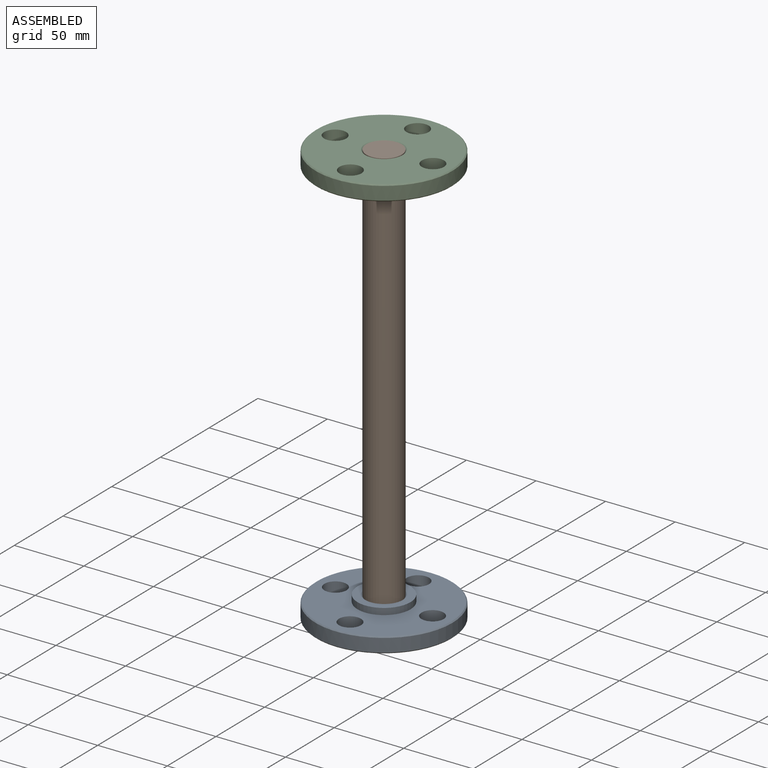
[diagram: assembled view]
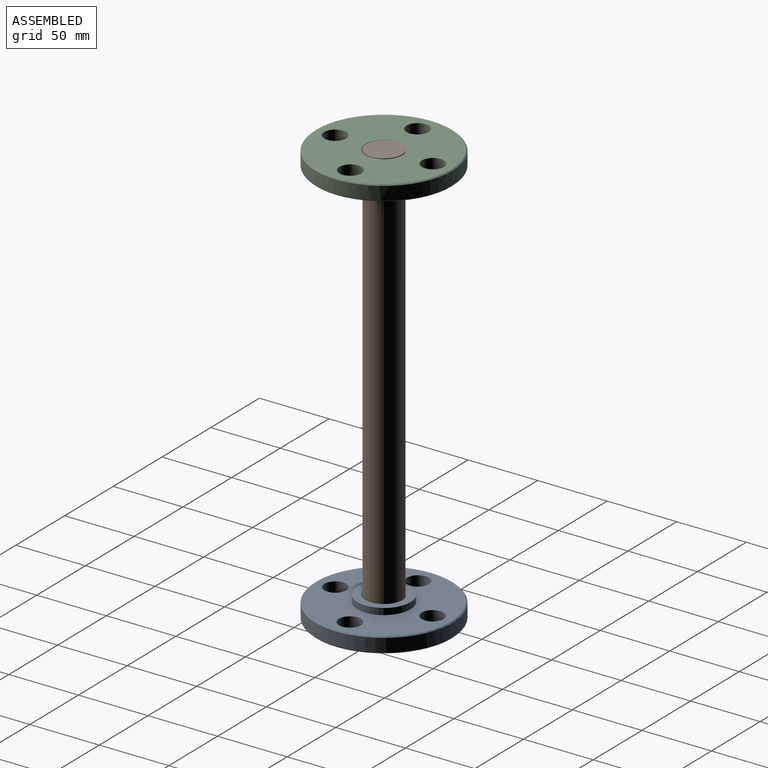
[diagram: assembled view, second angle]
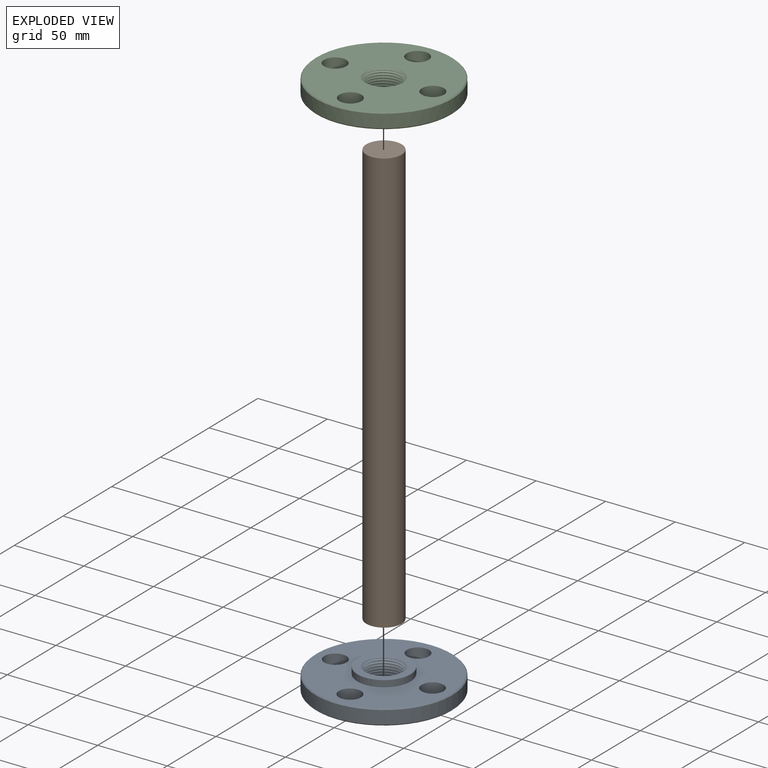
[diagram: exploded view]
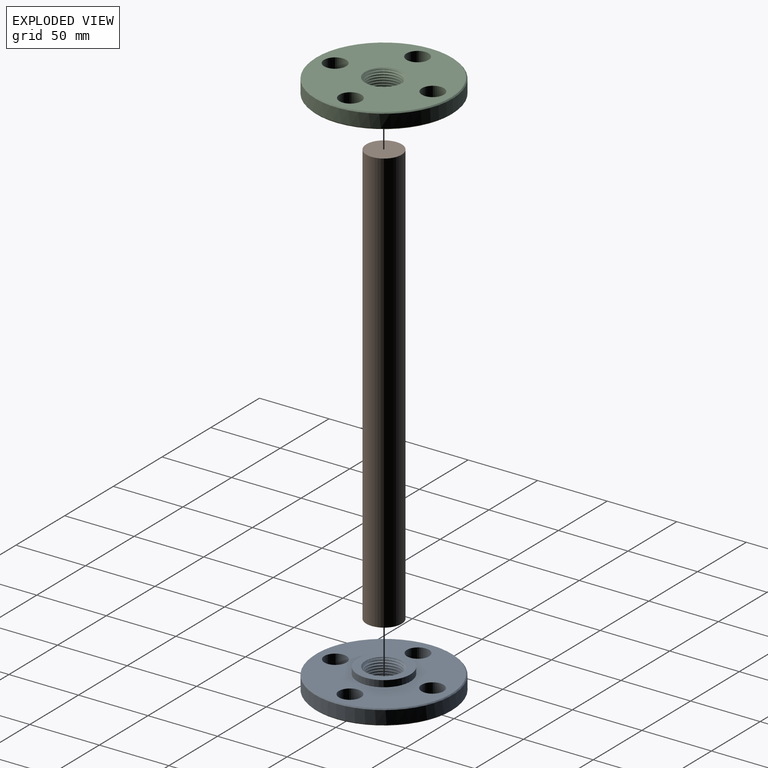
[diagram: exploded view, second angle]
ASSEMBLY  parts=3 mates=4
PART A: 18 faces, bbox 98.4x98.4x16.3 mm
  f0: cone r=13.53mm half-angle=45deg, axis (0,0,1), area 143.6mm2, adj f11,f12,f15,f16,f17
  f1: cone r=13.53mm half-angle=45deg, axis (0,0,-1), area 95.8mm2, adj f2,f11,f13,f15,f16,f17
  f2: cone r=13.53mm half-angle=45deg, axis (0,0,-1), area 0.5mm2, adj f1,f16,f17
  f3: cone r=48.45mm half-angle=45deg, axis (0,0,1), area 330.6mm2, adj f10,f14
  f4: cone r=49.21mm half-angle=45deg, axis (0,0,-1), area 330.6mm2, adj f10,f12
  f5: cylinder r=7.94mm len=15.88mm, axis (0,0,-1), area 554.2mm2, adj f12,f14
  f6: cylinder r=7.94mm len=15.88mm, axis (0,0,-1), area 554.2mm2, adj f12,f14
  f7: cylinder r=7.94mm len=15.88mm, axis (0,0,-1), area 554.2mm2, adj f12,f14
  f8: cylinder r=7.94mm len=15.88mm, axis (0,0,-1), area 554.2mm2, adj f12,f14
  f9: cylinder r=19.05mm len=38.1mm, axis (0,0,1), area 554.8mm2, adj f13,f14
  f10: cylinder r=49.21mm len=98.43mm, axis (0,0,1), area 2964.9mm2, adj f3,f4
  f11: cone r=13.33mm half-angle=1.8deg, axis (0,0,-1), area 133.5mm2, adj f0,f1,f15,f16
  f12: plane 96.9x96.9mm, normal (0,0,1), area 6007.8mm2, adj f0,f4,f5,f6,f7,f8
  f13: plane 38.1x38.1mm, normal (0,0,-1), area 564.9mm2, adj f1,f9
  f14: plane 96.9x96.9mm, normal (0,0,-1), area 5442.9mm2, adj f3,f5,f6,f7,f8,f9
  f15: bspline ~26.13x25.53mm, area 806.9mm2, adj f0,f1,f11,f17
  f16: bspline ~26.98x26.9mm, area 840.6mm2, adj f0,f1,f2,f11,f17
  f17: bspline ~24.19x24.18mm, area 116.5mm2, adj f0,f1,f2,f15,f16
PART B: 3 faces, bbox 25.4x25.4x304.8 mm
  f0: cylinder r=12.7mm len=304.8mm, axis (0,0,-1), area 24322mm2, adj f1,f2
  f1: plane 25.4x25.4mm, normal (0,0,1), area 506.7mm2, adj f0
  f2: plane 25.4x25.4mm, normal (0,0,-1), area 506.7mm2, adj f0
PART C: same geometry as A
PLACE A rot(axis=(1,0,0),180deg) t=(0.69,0.14,-1.03)mm fixed
PLACE B rot(axis=(0,0,1),0.5deg) t=(0.69,0.14,-1.03)mm
PLACE C rot(axis=(0,0,1),90.5deg) t=(0.69,0.14,303.77)mm
MATE cylindrical C.f0 <-> B.f0  axis (0,0,1) through (0.69,0.14,298.22)mm
MATE planar A.f0 <-> B.f0  axis (0,0,-1) through (0.69,0.14,-1.03)mm
MATE planar C.f0 <-> B.f0  axis (0,0,1) through (0.69,0.14,303.77)mm
MATE cylindrical A.f0 <-> B.f0  axis (0,0,-1) through (0.69,0.14,4.53)mm
